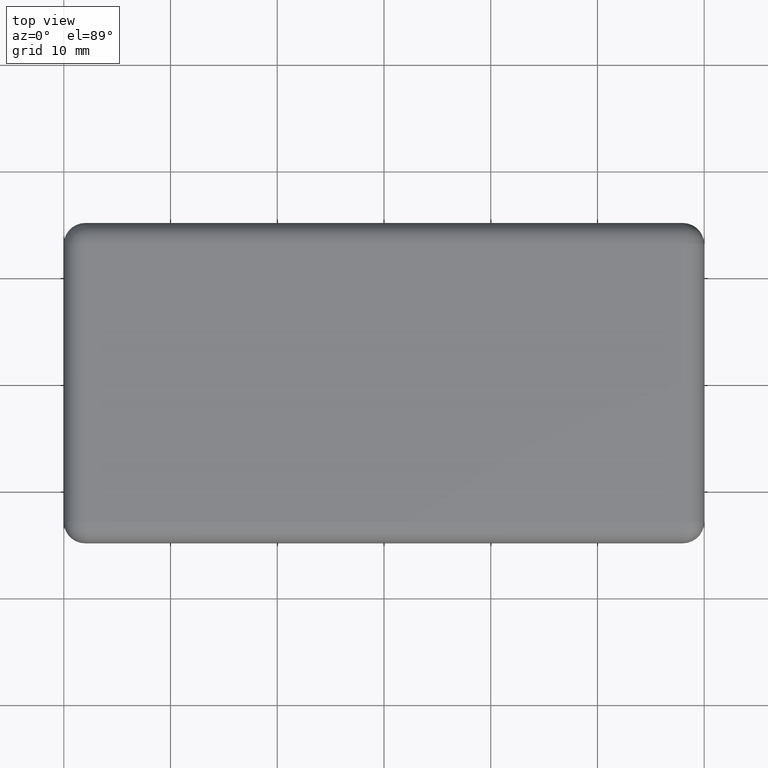
[diagram: clean part render]
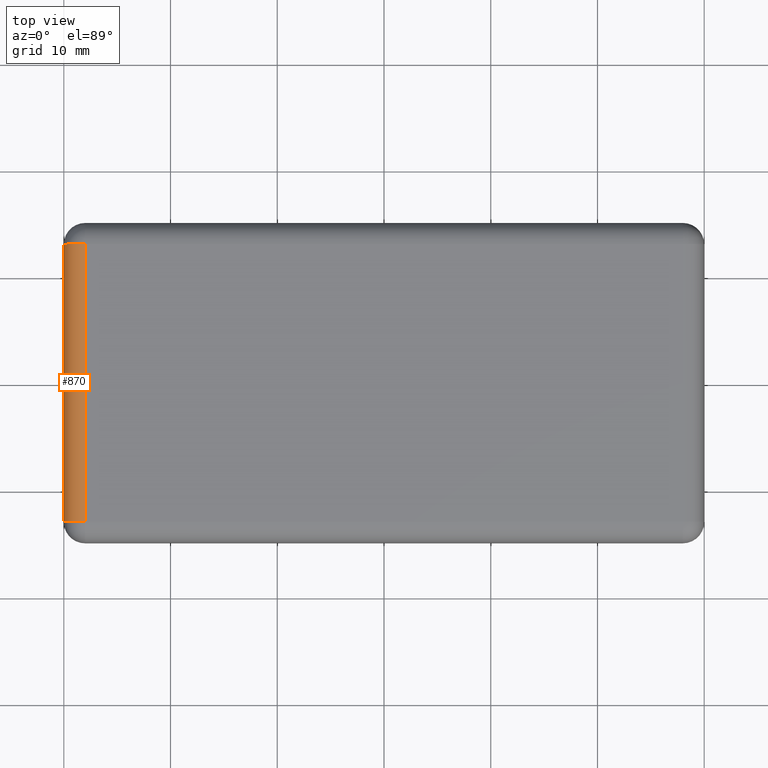
[diagram: same view with one face highlighted and labeled with its STEP entity id]
A machine part, top view. The second image highlights one B-rep face of the part: STEP entity #870.
In plain terms, the highlighted cylindrical surface (edge-blend (fillet) strip) has radius 2 mm, axis along (0, -1, 0).
Its self-contained STEP definition (entity closure, byte-faithful):
#21=CYLINDRICAL_SURFACE('',#937,2.);
#36=CIRCLE('',#923,2.);
#40=CIRCLE('',#932,2.);
#88=FACE_OUTER_BOUND('',#140,.T.);
#140=EDGE_LOOP('',(#763,#764,#765,#766));
#247=LINE('',#1416,#351);
#248=LINE('',#1417,#352);
#351=VECTOR('',#1164,26.);
#352=VECTOR('',#1165,26.);
#423=VERTEX_POINT('',#1381);
#424=VERTEX_POINT('',#1383);
#428=VERTEX_POINT('',#1403);
#429=VERTEX_POINT('',#1404);
#530=EDGE_CURVE('',#423,#424,#36,.F.);
#540=EDGE_CURVE('',#428,#429,#40,.F.);
#547=EDGE_CURVE('',#429,#423,#247,.T.);
#548=EDGE_CURVE('',#424,#428,#248,.T.);
#763=ORIENTED_EDGE('',*,*,#540,.T.);
#764=ORIENTED_EDGE('',*,*,#547,.T.);
#765=ORIENTED_EDGE('',*,*,#530,.T.);
#766=ORIENTED_EDGE('',*,*,#548,.T.);
#870=ADVANCED_FACE('',(#88),#21,.T.);
#923=AXIS2_PLACEMENT_3D('',#1385,#1124,#1125);
#932=AXIS2_PLACEMENT_3D('',#1405,#1148,#1149);
#937=AXIS2_PLACEMENT_3D('',#1415,#1162,#1163);
#1124=DIRECTION('center_axis',(0.,1.,0.));
#1125=DIRECTION('ref_axis',(0.,0.,1.));
#1148=DIRECTION('center_axis',(0.,-1.,0.));
#1149=DIRECTION('ref_axis',(-1.,0.,0.));
#1162=DIRECTION('center_axis',(0.,-1.,0.));
#1163=DIRECTION('ref_axis',(-0.707106781186548,0.,0.707106781186547));
#1164=DIRECTION('',(0.,1.,0.));
#1165=DIRECTION('',(0.,-1.,0.));
#1381=CARTESIAN_POINT('',(-28.,13.,3.));
#1383=CARTESIAN_POINT('',(-30.,13.,1.));
#1385=CARTESIAN_POINT('Origin',(-28.,13.,1.));
#1403=CARTESIAN_POINT('',(-30.,-13.,1.));
#1404=CARTESIAN_POINT('',(-28.,-13.,3.));
#1405=CARTESIAN_POINT('Origin',(-28.,-13.,1.));
#1415=CARTESIAN_POINT('Origin',(-28.,7.5,1.));
#1416=CARTESIAN_POINT('',(-28.,7.5,3.));
#1417=CARTESIAN_POINT('',(-30.,7.5,1.));